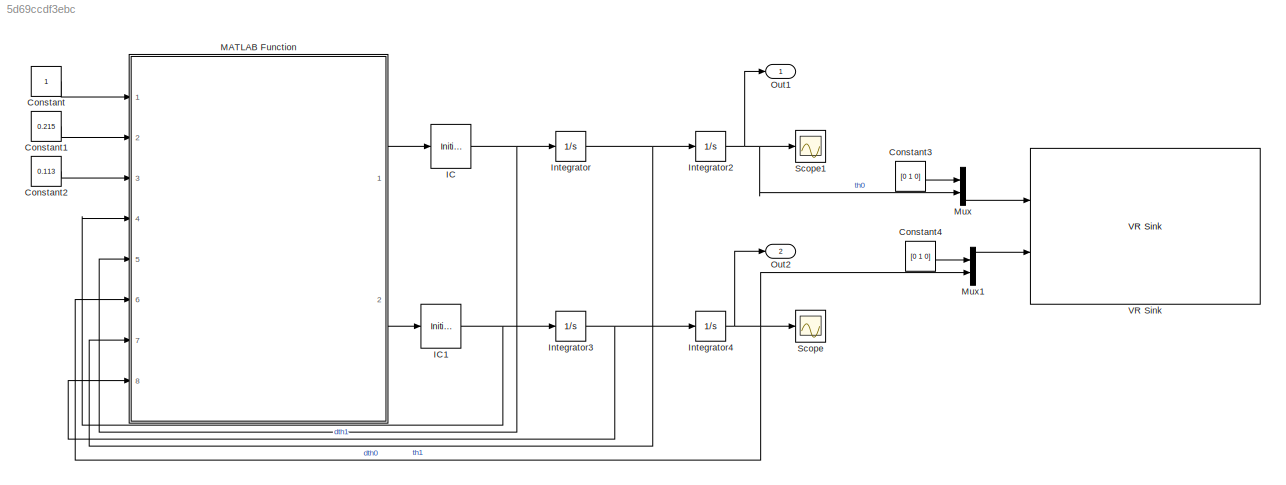
MODEL slx_5d69ccdf3ebc
KIND model
CONFIG AbsTol = auto
CONFIG EnableMultiTasking = off
CONFIG FixedStep = 0.001
CONFIG MaxStep = auto
CONFIG MinStep = auto
CONFIG RelTol = 1e-3
CONFIG SampleTimeConstraint = Unconstrained
CONFIG Solver = ode4
CONFIG SolverName = ode4
CONFIG StartTime = 0.0
CONFIG StopTime = 10
BLOCK [Constant] Constant
BLOCK [Constant] Constant1
  Value = 0.215
BLOCK [Constant] Constant2
  Value = 0.113
BLOCK [Constant] Constant3
  Value = [0 1 0]
BLOCK [Constant] Constant4
  Value = [0 1 0]
BLOCK [InitialCondition] IC
  Value = 0.0000001
BLOCK [InitialCondition] IC1
  Value = 0.0000001
BLOCK [Integrator] Integrator
  Ports = [1, 1]
BLOCK [Integrator] Integrator2
  Ports = [1, 1]
BLOCK [Integrator] Integrator3
  Ports = [1, 1]
BLOCK [Integrator] Integrator4
  Ports = [1, 1]
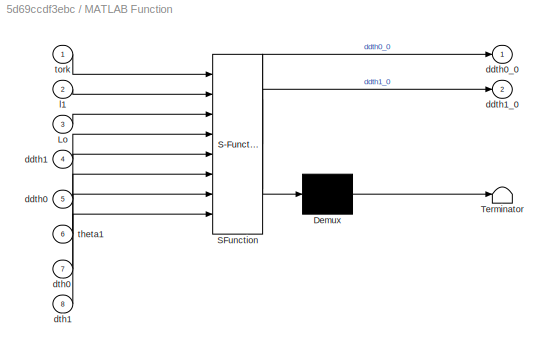
BLOCK [SubSystem] MATLAB Function
  ErrorFcn = Stateflow.Translate.translate
  PermitHierarchicalResolution = ExplicitOnly
  Ports = [8, 2]
  RequestExecContextInheritance = off
  SFBlockType = MATLAB Function
  TreatAsAtomicUnit = on
  Variant = off
BLOCK [Demux] MATLAB Function/ Demux 
  Outputs = 1
  Ports = [1, 1]
BLOCK [S-Function] MATLAB Function/ SFunction 
  EnableBusSupport = on
  FunctionName = sf_sfun
  PortCounts = [8 3]
  Ports = [8, 3]
  SFcnIsStateOwnerBlock = off
  SFunctionDeploymentMode = off
  Tag = Stateflow S-Function furutaPend_fcn_sim 2
BLOCK [Terminator] MATLAB Function/ Terminator 
BLOCK [Inport] MATLAB Function/Lo
  IconDisplay = Port number
  Port = 3
BLOCK [Inport] MATLAB Function/ddth0
  IconDisplay = Port number
  Port = 5
BLOCK [Outport] MATLAB Function/ddth0_0
  IconDisplay = Port number
BLOCK [Inport] MATLAB Function/ddth1
  IconDisplay = Port number
  Port = 4
BLOCK [Outport] MATLAB Function/ddth1_0
  IconDisplay = Port number
  Port = 2
BLOCK [Inport] MATLAB Function/dth0
  IconDisplay = Port number
  Port = 7
BLOCK [Inport] MATLAB Function/dth1
  IconDisplay = Port number
  Port = 8
BLOCK [Inport] MATLAB Function/l1
  IconDisplay = Port number
  Port = 2
BLOCK [Inport] MATLAB Function/theta1
  IconDisplay = Port number
  Port = 6
BLOCK [Inport] MATLAB Function/tork
  IconDisplay = Port number
BLOCK [Mux] Mux
  DisplayOption = bar
  Inputs = 2
  Ports = [2, 1]
BLOCK [Mux] Mux1
  DisplayOption = bar
  Inputs = 2
  Ports = [2, 1]
BLOCK [Outport] Out1
  IconDisplay = Port number
BLOCK [Outport] Out2
  IconDisplay = Port number
  Port = 2
BLOCK [Scope] Scope
  NumInputPorts = 1
  Ports = [1]
  ScopeSpecificationString = Simulink.scopes.TimeScopeBlockCfg('CurrentConfiguration', extmgr.ConfigurationSet(extmgr.Configuration('Core','General UI',true),extmgr.Configuration('Core','Source UI',true),extmgr.Configuration('Sources','WiredSimulink',true),extmgr.Configuration('Visuals','Time Domain',true,'SerializedDisplays',{struct('MinYLimReal','-6.86232','MaxYLimReal','0.76248','YLabelReal','','MinYLimMag','0.00000','MaxY...<+1323ch>
BLOCK [Scope] Scope1
  NumInputPorts = 1
  Ports = [1]
  ScopeSpecificationString = Simulink.scopes.TimeScopeBlockCfg('CurrentConfiguration', extmgr.ConfigurationSet(extmgr.Configuration('Core','General UI',true),extmgr.Configuration('Core','Source UI',true),extmgr.Configuration('Sources','WiredSimulink',true,'DataLoggingVariableName','ScopeData1'),extmgr.Configuration('Visuals','Time Domain',true,'SerializedDisplays',{struct('MinYLimReal','-4856.96237','MaxYLimReal','43712.66132...<+1417ch>
BLOCK [Reference] VR Sink  REF=vrlib/VR Sink
  InstantiateOnLoad = on
  Ports = [2]
  SourceBlock = vrlib/VR Sink
  SourceProductBaseCode = VR
  SourceProductName = Simulink 3D Animation
  SourceType = Virtual Reality Sink
LINE Constant1:1 -> MATLAB Function:2
LINE Constant2:1 -> MATLAB Function:3
LINE Constant3:1 -> Mux:1
LINE Constant4:1 -> Mux1:1
LINE Constant:1 -> MATLAB Function:1
NET IC1:1 -> Integrator3:1, MATLAB Function:4
NET IC:1 -> Integrator:1, MATLAB Function:5
NET Integrator2:1 -> Mux:2, Out1:1, Scope1:1
NET Integrator3:1 -> Integrator4:1, MATLAB Function:8
NET Integrator4:1 -> MATLAB Function:6, Mux1:2, Out2:1, Scope:1
NET Integrator:1 -> Integrator2:1, MATLAB Function:7
LINE MATLAB Function:1 -> IC:1
LINE MATLAB Function:2 -> IC1:1
LINE Mux1:1 -> VR Sink:2
LINE Mux:1 -> VR Sink:1
note: NET lines group one-source signal fan-out (src -> all destinations, sorted); 1:1 wires keep LINE
CHART MATLAB Function states=1 transitions=1
  STATE_LABEL 'eML_blk_kernel()'
  STATE_LABEL 'SCRIPT:\nfunction[ddth0_0,ddth1_0] = furuta_Pend(tork,l1,Lo,ddth1,ddth0,theta1,dth0,dth1)\nm=5.38*10^(-2);     Io=1.75*10^(-2);    \nL1=0.25;            J1=1.98*10^(-4);\ng=9.81;\n\n\n\n\nddth0_0=(tork-m*l1*(Lo*cos(theta1)*ddth1+l1*sin(2*theta1)*dth0*dth1-Lo*sin(theta1)*dth1*dth1))/(Io+m*Lo*Lo+l1*l1*m*sin(theta1)*sin(theta1));\n\nddth1_0=m*l1*(l1*sin(theta1)*cos(theta1)*(dth0^2)+g*sin(theta1)-Lo*cos(theta1)*...<+24ch>'
